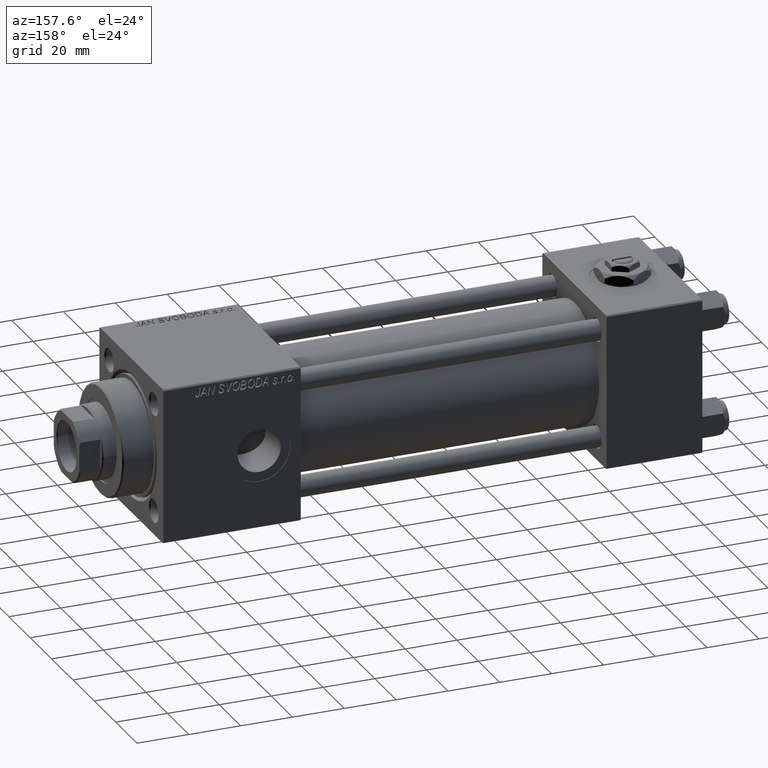
[diagram: clean part render]
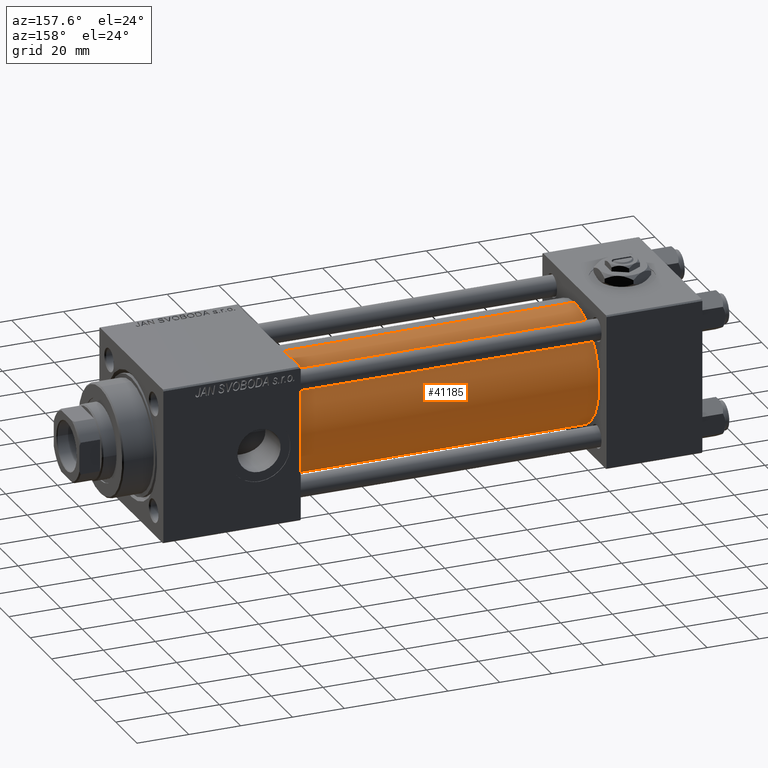
[diagram: same view with one face highlighted and labeled with its STEP entity id]
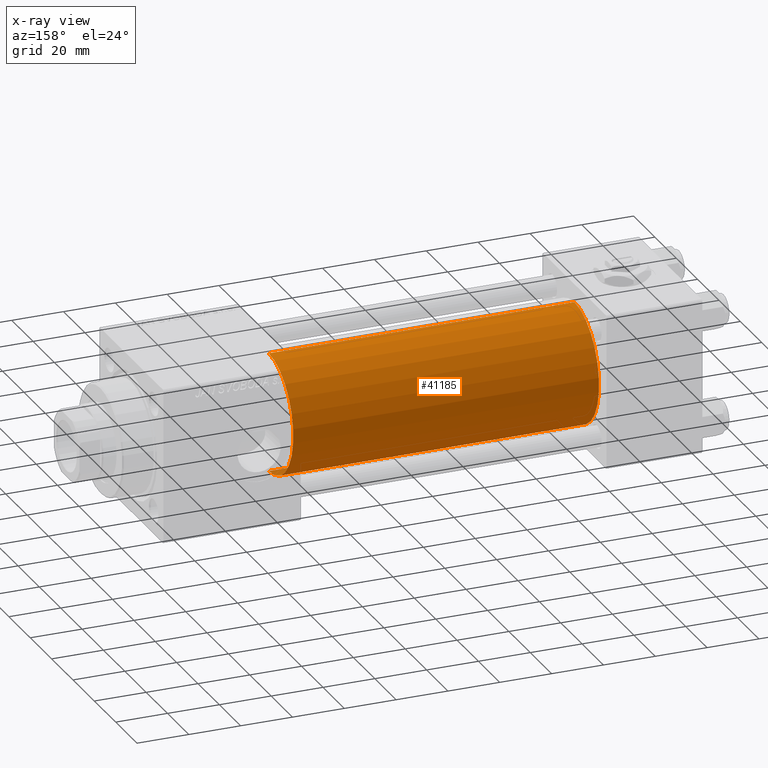
[diagram: x-ray of the same camera — body ghosted, the highlighted face saturated]
A machine part, auxiliary view. The second image highlights one B-rep face of the part: STEP entity #41185.
The next image is the same camera in x-ray: the body ghosted, the highlighted face saturated — about 0% of this face is hidden behind the body in this view.
In plain terms, the highlighted cylindrical surface (partial cylindrical patch) has radius 23 mm, axis along (-1, -0, -0).
Its self-contained STEP definition (entity closure, byte-faithful):
#267 = CIRCLE ( 'NONE', #27097, 23.00000000000000000 ) ;
#311 = CARTESIAN_POINT ( 'NONE',  ( 155.0000000000000000, 2.146024240737016609E-16, -23.00000000000000000 ) ) ;
#631 = CARTESIAN_POINT ( 'NONE',  ( 37.00000000000000711, 2.146024240737016609E-16, -23.00000000000000000 ) ) ;
#2468 = CARTESIAN_POINT ( 'NONE',  ( 155.0000000000000000, -2.602085213965210642E-15, 23.00000000000000000 ) ) ;
#2608 = CARTESIAN_POINT ( 'NONE',  ( 155.0000000000000000, -2.602085213965210642E-15, 0.000000000000000000 ) ) ;
#5853 = ORIENTED_EDGE ( 'NONE', *, *, #33452, .F. ) ;
#8201 = VERTEX_POINT ( 'NONE', #17446 ) ;
#8992 = ORIENTED_EDGE ( 'NONE', *, *, #23581, .F. ) ;
#11097 = VERTEX_POINT ( 'NONE', #631 ) ;
#15935 = VECTOR ( 'NONE', #43940, 1000.000000000000000 ) ;
#17316 = CARTESIAN_POINT ( 'NONE',  ( 37.00000000000000711, -2.602085213965210642E-15, 0.000000000000000000 ) ) ;
#17446 = CARTESIAN_POINT ( 'NONE',  ( 37.00000000000000711, -2.602085213965210642E-15, 23.00000000000000000 ) ) ;
#18902 = DIRECTION ( 'NONE',  ( 0.000000000000000000, 0.000000000000000000, -1.000000000000000000 ) ) ;
#19399 = EDGE_CURVE ( 'NONE', #11097, #8201, #267, .T. ) ;
#22839 = DIRECTION ( 'NONE',  ( 1.000000000000000000, 0.000000000000000000, 0.000000000000000000 ) ) ;
#23581 = EDGE_CURVE ( 'NONE', #44564, #51108, #49960, .T. ) ;
#24641 = CYLINDRICAL_SURFACE ( 'NONE', #39387, 23.00000000000000000 ) ;
#25791 = ORIENTED_EDGE ( 'NONE', *, *, #49944, .T. ) ;
#27097 = AXIS2_PLACEMENT_3D ( 'NONE', #17316, #33593, #49375 ) ;
#28323 = CARTESIAN_POINT ( 'NONE',  ( 155.0000000000000000, -2.602085213965210642E-15, 0.000000000000000000 ) ) ;
#28929 = AXIS2_PLACEMENT_3D ( 'NONE', #2608, #22839, #18902 ) ;
#30910 = CARTESIAN_POINT ( 'NONE',  ( 155.0000000000000000, -2.602085213965210642E-15, 23.00000000000000000 ) ) ;
#33452 = EDGE_CURVE ( 'NONE', #51108, #8201, #51671, .T. ) ;
#33593 = DIRECTION ( 'NONE',  ( 1.000000000000000000, -0.000000000000000000, 0.000000000000000000 ) ) ;
#36216 = DIRECTION ( 'NONE',  ( 0.000000000000000000, 0.000000000000000000, 1.000000000000000000 ) ) ;
#36477 = DIRECTION ( 'NONE',  ( -1.000000000000000000, -0.000000000000000000, -0.000000000000000000 ) ) ;
#37849 = ORIENTED_EDGE ( 'NONE', *, *, #19399, .T. ) ;
#39387 = AXIS2_PLACEMENT_3D ( 'NONE', #28323, #36477, #36216 ) ;
#39666 = CARTESIAN_POINT ( 'NONE',  ( 155.0000000000000000, 2.146024240737016609E-16, -23.00000000000000000 ) ) ;
#39745 = LINE ( 'NONE', #311, #15935 ) ;
#41185 = ADVANCED_FACE ( 'NONE', ( #44623 ), #24641, .T. ) ;
#43940 = DIRECTION ( 'NONE',  ( -1.000000000000000000, -0.000000000000000000, -0.000000000000000000 ) ) ;
#44564 = VERTEX_POINT ( 'NONE', #39666 ) ;
#44623 = FACE_OUTER_BOUND ( 'NONE', #49555, .T. ) ;
#46693 = DIRECTION ( 'NONE',  ( -1.000000000000000000, -0.000000000000000000, -0.000000000000000000 ) ) ;
#49297 = VECTOR ( 'NONE', #46693, 1000.000000000000000 ) ;
#49375 = DIRECTION ( 'NONE',  ( 0.000000000000000000, 0.000000000000000000, 1.000000000000000000 ) ) ;
#49555 = EDGE_LOOP ( 'NONE', ( #8992, #25791, #37849, #5853 ) ) ;
#49944 = EDGE_CURVE ( 'NONE', #44564, #11097, #39745, .T. ) ;
#49960 = CIRCLE ( 'NONE', #28929, 23.00000000000000000 ) ;
#51108 = VERTEX_POINT ( 'NONE', #2468 ) ;
#51671 = LINE ( 'NONE', #30910, #49297 ) ;